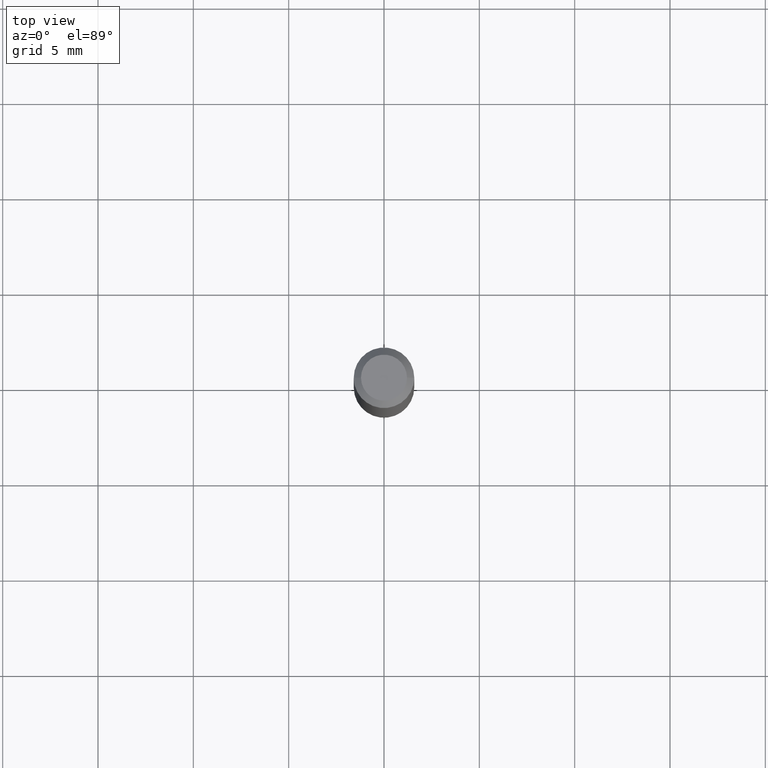
[diagram: clean part render]
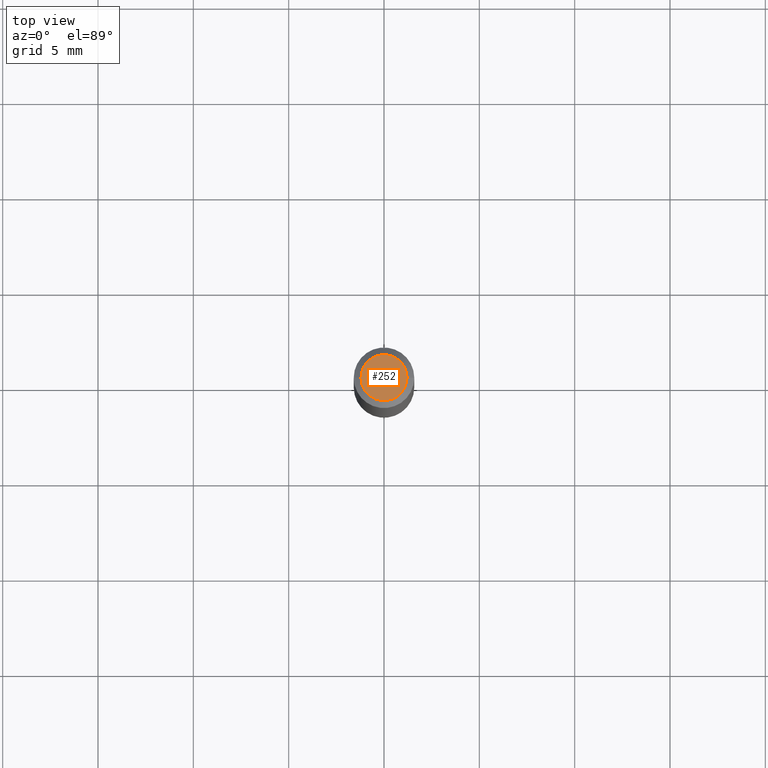
[diagram: same view with one face highlighted and labeled with its STEP entity id]
A machine part, top view. The second image highlights one B-rep face of the part: STEP entity #252.
In plain terms, the highlighted planar face has unit normal (0, -0, -1).
Its self-contained STEP definition (entity closure, byte-faithful):
#6 = CARTESIAN_POINT ( 'NONE',  ( 0.04749999999999999362, -4.035134999187577144E-16, 8.673617379885194112E-17 ) ) ;
#68 = DIRECTION ( 'NONE',  ( 2.438088387897960049E-29, -3.491481338843145188E-15, -1.000000000000000000 ) ) ;
#72 = AXIS2_PLACEMENT_3D ( 'NONE', #297, #260, #329 ) ;
#95 = ORIENTED_EDGE ( 'NONE', *, *, #299, .T. ) ;
#116 = DIRECTION ( 'NONE',  ( -2.445468806185136597E-29, 3.491481338843145583E-15, 1.000000000000000000 ) ) ;
#153 = CARTESIAN_POINT ( 'NONE',  ( -0.04749999999999999362, 3.578768372314211985E-16, 8.673617379884694910E-17 ) ) ;
#171 = AXIS2_PLACEMENT_3D ( 'NONE', #373, #116, #231 ) ;
#175 = FACE_OUTER_BOUND ( 'NONE', #242, .T. ) ;
#186 = CIRCLE ( 'NONE', #72, 0.04749999999999999362 ) ;
#201 = CIRCLE ( 'NONE', #171, 0.04749999999999999362 ) ;
#215 = DIRECTION ( 'NONE',  ( -1.000000000000000000, 6.982962677686265922E-15, -4.876176775795935793E-29 ) ) ;
#231 = DIRECTION ( 'NONE',  ( 1.000000000000000000, -6.982962677686267499E-15, 4.884662768193073002E-29 ) ) ;
#242 = EDGE_LOOP ( 'NONE', ( #370, #95 ) ) ;
#252 = ADVANCED_FACE ( 'NONE', ( #175 ), #284, .F. ) ;
#260 = DIRECTION ( 'NONE',  ( -2.445468806185136597E-29, 3.491481338843145583E-15, 1.000000000000000000 ) ) ;
#268 = EDGE_CURVE ( 'NONE', #279, #273, #201, .T. ) ;
#273 = VERTEX_POINT ( 'NONE', #6 ) ;
#279 = VERTEX_POINT ( 'NONE', #153 ) ;
#284 = PLANE ( 'NONE',  #285 ) ;
#285 = AXIS2_PLACEMENT_3D ( 'NONE', #393, #68, #215 ) ;
#297 = CARTESIAN_POINT ( 'NONE',  ( -2.121106073929386760E-45, 3.028377322213383622E-31, 8.673617379884936499E-17 ) ) ;
#299 = EDGE_CURVE ( 'NONE', #273, #279, #186, .T. ) ;
#329 = DIRECTION ( 'NONE',  ( 1.000000000000000000, -6.982962677686267499E-15, 4.884662768193073002E-29 ) ) ;
#370 = ORIENTED_EDGE ( 'NONE', *, *, #268, .T. ) ;
#373 = CARTESIAN_POINT ( 'NONE',  ( -2.121106073929386760E-45, 3.028377322213383622E-31, 8.673617379884936499E-17 ) ) ;
#393 = CARTESIAN_POINT ( 'NONE',  ( 3.316907271900976096E-16, 0.04749999999999999362, -1.224772766956247324E-16 ) ) ;